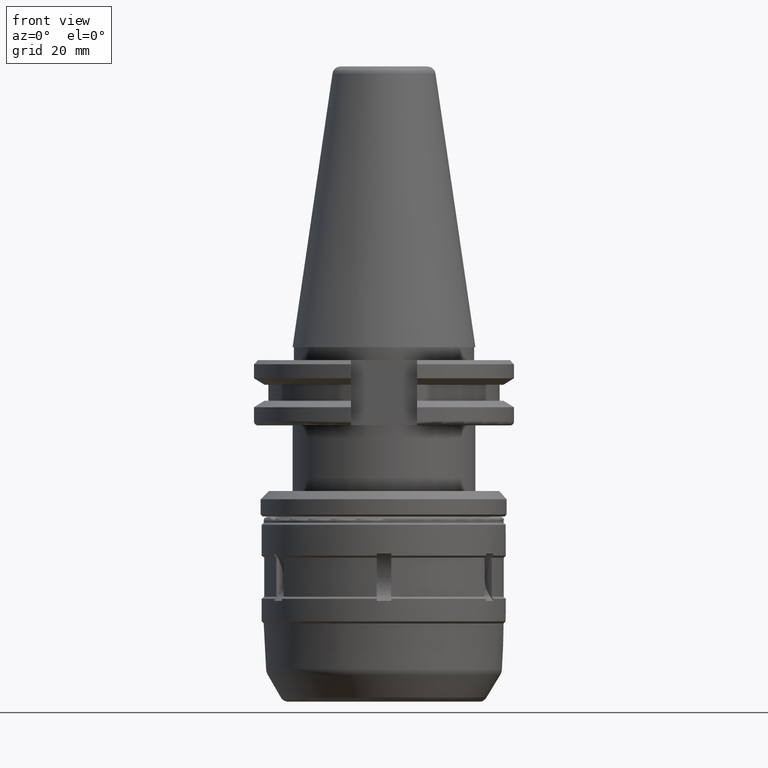
[diagram: clean part render]
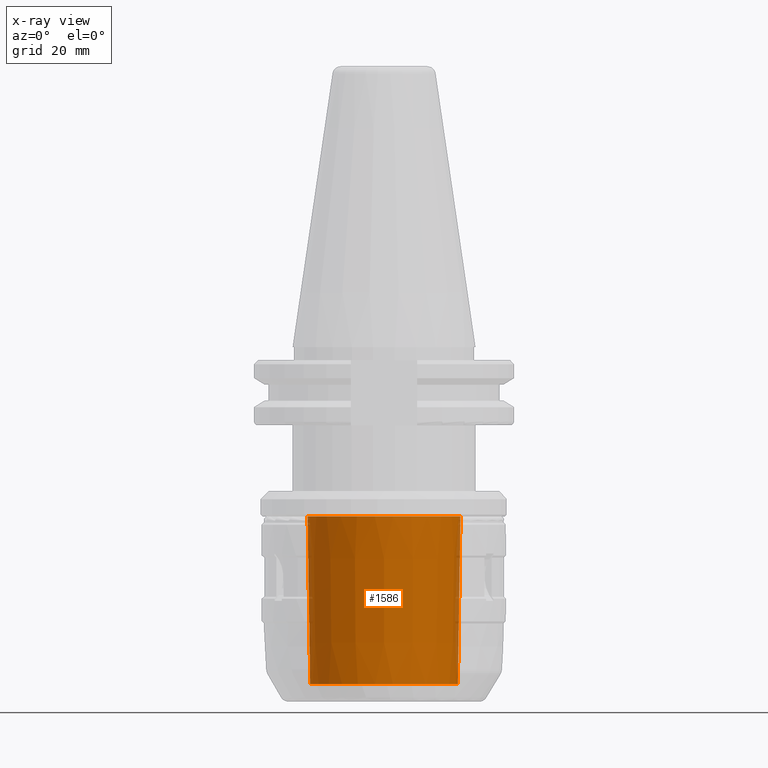
[diagram: x-ray — body ghosted, one internal face saturated and labeled with its STEP entity id]
A machine part, front view, then the same camera in x-ray: the body is ghosted and one INTERNAL B-rep face — a face not visible from any outside direction — is saturated and labeled: STEP entity #1586.
In plain terms, the highlighted conical surface has half-angle 0.895 deg.
Its self-contained STEP definition (entity closure, byte-faithful):
#395 = EDGE_LOOP ( 'NONE', ( #3400 ) ) ;
#584 = VERTEX_POINT ( 'NONE', #2021 ) ;
#843 = VERTEX_POINT ( 'NONE', #3690 ) ;
#954 = ORIENTED_EDGE ( 'NONE', *, *, #1128, .T. ) ;
#1128 = EDGE_CURVE ( 'NONE', #584, #584, #3669, .T. ) ;
#1586 = ADVANCED_FACE ( 'NONE', ( #3627, #4300 ), #4601, .T. ) ;
#1650 = CIRCLE ( 'NONE', #4573, 17.95624950008195597 ) ;
#1659 = AXIS2_PLACEMENT_3D ( 'NONE', #3590, #4327, #3986 ) ;
#1662 = DIRECTION ( 'NONE',  ( -1.000000000000000000, 0.000000000000000000, 0.000000000000000000 ) ) ;
#2021 = CARTESIAN_POINT ( 'NONE',  ( -18.59374999999999289, 1.483994170672545651E-15, -41.20000000000003126 ) ) ;
#2165 = DIRECTION ( 'NONE',  ( 1.000000000000000000, 0.000000000000000000, 0.000000000000000000 ) ) ;
#2436 = CARTESIAN_POINT ( 'NONE',  ( 0.000000000000000000, 1.483994170672545651E-15, -82.00000000000001421 ) ) ;
#2541 = CARTESIAN_POINT ( 'NONE',  ( 0.000000000000000000, 1.483994170672545651E-15, -41.20000000000003126 ) ) ;
#2687 = DIRECTION ( 'NONE',  ( -0.000000000000000000, -0.000000000000000000, -1.000000000000000000 ) ) ;
#2812 = AXIS2_PLACEMENT_3D ( 'NONE', #2541, #3285, #2165 ) ;
#2929 = EDGE_LOOP ( 'NONE', ( #954 ) ) ;
#3258 = EDGE_CURVE ( 'NONE', #843, #843, #1650, .T. ) ;
#3285 = DIRECTION ( 'NONE',  ( 0.000000000000000000, 0.000000000000000000, 1.000000000000000000 ) ) ;
#3400 = ORIENTED_EDGE ( 'NONE', *, *, #3258, .F. ) ;
#3590 = CARTESIAN_POINT ( 'NONE',  ( 0.000000000000000000, 1.483994170672545651E-15, -41.20000000000003126 ) ) ;
#3627 = FACE_BOUND ( 'NONE', #395, .T. ) ;
#3669 = CIRCLE ( 'NONE', #1659, 18.59374999999999289 ) ;
#3690 = CARTESIAN_POINT ( 'NONE',  ( -17.95624950008195597, 1.483994170672545651E-15, -82.00000000000001421 ) ) ;
#3986 = DIRECTION ( 'NONE',  ( -1.000000000000000000, 0.000000000000000000, 0.000000000000000000 ) ) ;
#4300 = FACE_OUTER_BOUND ( 'NONE', #2929, .T. ) ;
#4327 = DIRECTION ( 'NONE',  ( -0.000000000000000000, -0.000000000000000000, -1.000000000000000000 ) ) ;
#4573 = AXIS2_PLACEMENT_3D ( 'NONE', #2436, #2687, #1662 ) ;
#4601 = CONICAL_SURFACE ( 'NONE', #2812, 18.59374999999999289, 0.01562374087037918940 ) ;